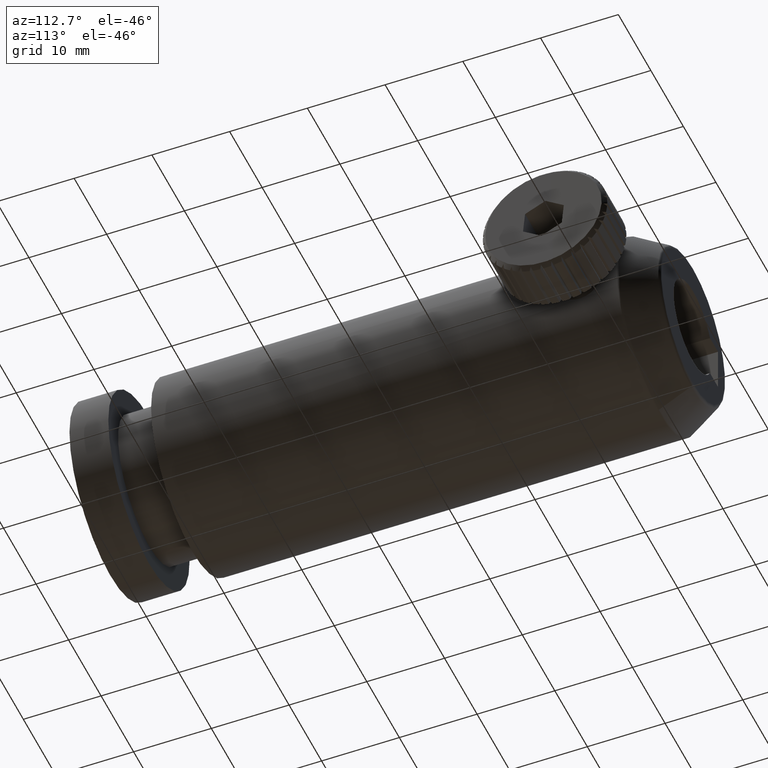
[diagram: clean part render]
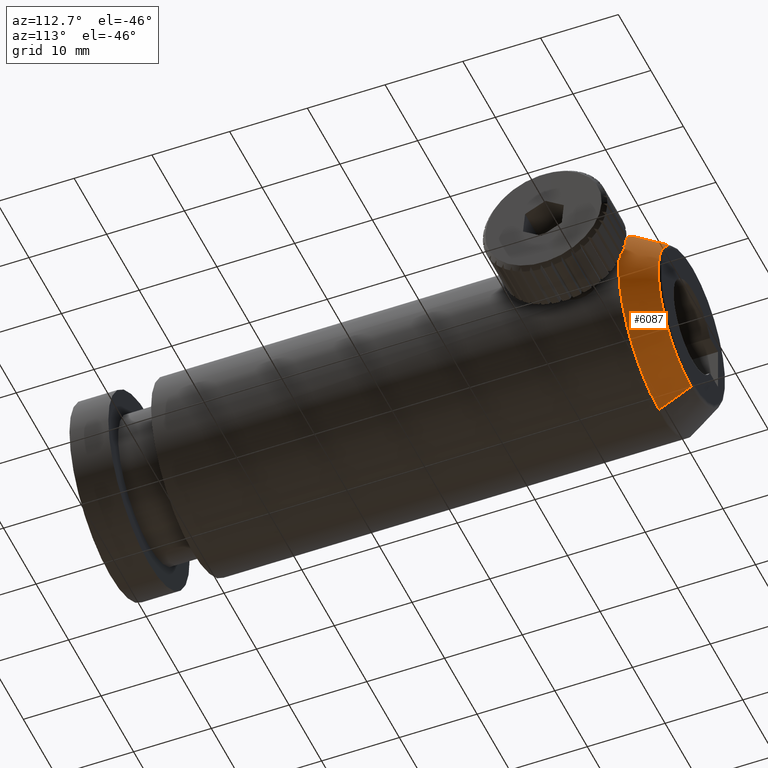
[diagram: same view with one face highlighted and labeled with its STEP entity id]
A machine part, auxiliary view. The second image highlights one B-rep face of the part: STEP entity #6087.
In plain terms, the highlighted conical surface has half-angle 29.055 deg.
Its self-contained STEP definition (entity closure, byte-faithful):
#21 = CARTESIAN_POINT ( 'NONE',  ( -3.204778668925408081, 58.79964639188069953, 12.43707863806077540 ) ) ;
#396 = ORIENTED_EDGE ( 'NONE', *, *, #4881, .T. ) ;
#474 = LINE ( 'NONE', #5331, #8991 ) ;
#569 = AXIS2_PLACEMENT_3D ( 'NONE', #7915, #1576, #8655 ) ;
#644 = ORIENTED_EDGE ( 'NONE', *, *, #7187, .F. ) ;
#1234 = CARTESIAN_POINT ( 'NONE',  ( -3.204778668925408525, 63.18638794039016204, 9.999999999999968026 ) ) ;
#1290 = ORIENTED_EDGE ( 'NONE', *, *, #6217, .T. ) ;
#1576 = DIRECTION ( 'NONE',  ( 0.0000000000000000000, -1.000000000000000000, 0.0000000000000000000 ) ) ;
#2414 = VERTEX_POINT ( 'NONE', #4118 ) ;
#2569 = DIRECTION ( 'NONE',  ( 0.0000000000000000000, 0.0000000000000000000, 1.000000000000000000 ) ) ;
#2753 = DIRECTION ( 'NONE',  ( 5.947410611964488508E-17, -0.8741572761215383736, 0.4856429311786309988 ) ) ;
#2998 = CARTESIAN_POINT ( 'NONE',  ( -3.204778668925408525, 62.92920940597948487, -10.14287696356145574 ) ) ;
#3404 = CARTESIAN_POINT ( 'NONE',  ( -3.204778668925409857, 62.92920940597948487, -7.703719777548943412E-31 ) ) ;
#3500 = EDGE_CURVE ( 'NONE', #5700, #2414, #5677, .T. ) ;
#3859 = DIRECTION ( 'NONE',  ( -0.0000000000000000000, 1.000000000000000000, -0.0000000000000000000 ) ) ;
#3906 = ORIENTED_EDGE ( 'NONE', *, *, #3500, .T. ) ;
#4118 = CARTESIAN_POINT ( 'NONE',  ( -3.204778668925409857, 58.79964639188069953, -12.43707863806077540 ) ) ;
#4691 = EDGE_LOOP ( 'NONE', ( #1290, #396, #3906, #644 ) ) ;
#4881 = EDGE_CURVE ( 'NONE', #7019, #5700, #6273, .T. ) ;
#5185 = DIRECTION ( 'NONE',  ( -0.0000000000000000000, -1.000000000000000000, -0.0000000000000000000 ) ) ;
#5331 = CARTESIAN_POINT ( 'NONE',  ( -3.204778668925409857, 63.18638794039016204, -9.999999999999968026 ) ) ;
#5677 = CIRCLE ( 'NONE', #9068, 12.43707863806078073 ) ;
#5700 = VERTEX_POINT ( 'NONE', #21 ) ;
#5952 = VECTOR ( 'NONE', #2753, 1000.000000000000000 ) ;
#6087 = ADVANCED_FACE ( 'NONE', ( #8609 ), #8987, .T. ) ;
#6217 = EDGE_CURVE ( 'NONE', #9063, #7019, #7653, .T. ) ;
#6273 = LINE ( 'NONE', #1234, #5952 ) ;
#6856 = CARTESIAN_POINT ( 'NONE',  ( -3.204778668925409857, 62.92920940597948487, 10.14287696356145574 ) ) ;
#7019 = VERTEX_POINT ( 'NONE', #6856 ) ;
#7187 = EDGE_CURVE ( 'NONE', #9063, #2414, #474, .T. ) ;
#7653 = CIRCLE ( 'NONE', #8251, 10.14287696356146107 ) ;
#7915 = CARTESIAN_POINT ( 'NONE',  ( -3.204778668925409857, 63.18638794039016204, -7.703719777548943412E-31 ) ) ;
#8152 = DIRECTION ( 'NONE',  ( 0.0000000000000000000, -0.8741572761215383736, -0.4856429311786309988 ) ) ;
#8251 = AXIS2_PLACEMENT_3D ( 'NONE', #3404, #5185, #2569 ) ;
#8609 = FACE_OUTER_BOUND ( 'NONE', #4691, .T. ) ;
#8655 = DIRECTION ( 'NONE',  ( 0.0000000000000000000, 0.0000000000000000000, -1.000000000000000000 ) ) ;
#8768 = DIRECTION ( 'NONE',  ( 0.0000000000000000000, 0.0000000000000000000, -1.000000000000000000 ) ) ;
#8814 = CARTESIAN_POINT ( 'NONE',  ( -3.204778668925409857, 58.79964639188069953, -7.703719777548943412E-31 ) ) ;
#8987 = CONICAL_SURFACE ( 'NONE', #569, 9.999999999999968026, 0.5070985043923357249 ) ;
#8991 = VECTOR ( 'NONE', #8152, 1000.000000000000000 ) ;
#9063 = VERTEX_POINT ( 'NONE', #2998 ) ;
#9068 = AXIS2_PLACEMENT_3D ( 'NONE', #8814, #3859, #8768 ) ;